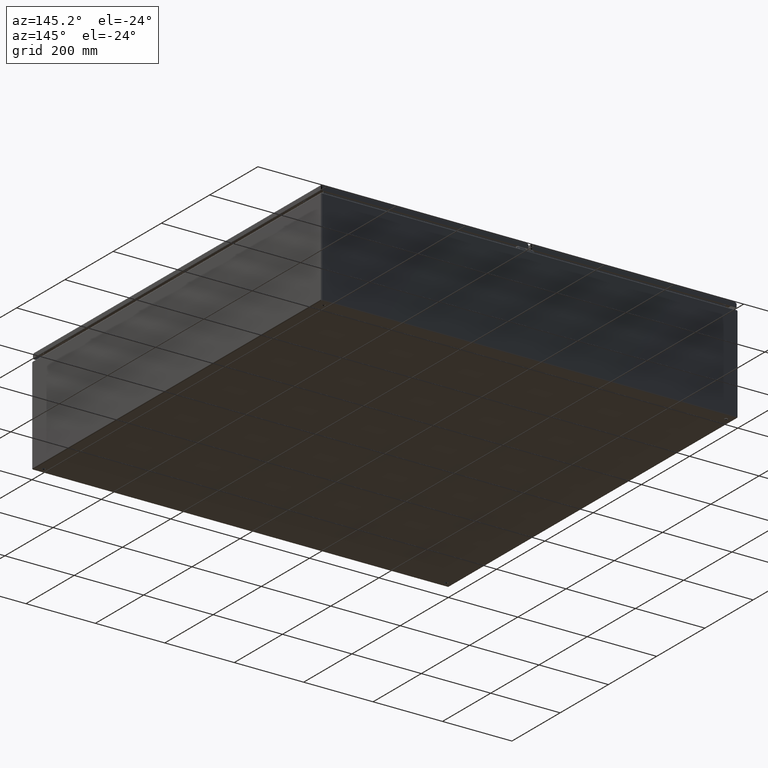
[diagram: clean part render]
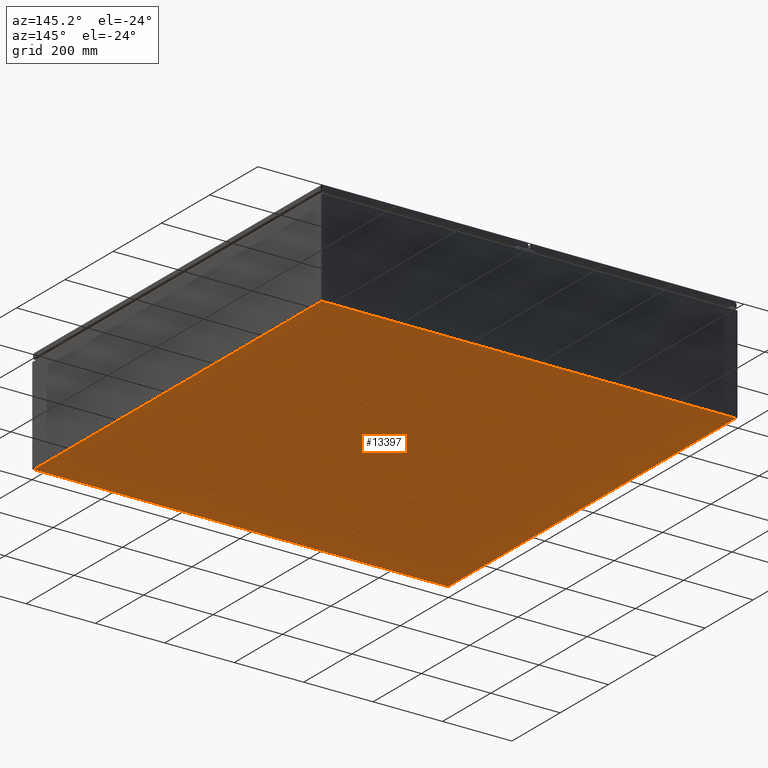
[diagram: same view with one face highlighted and labeled with its STEP entity id]
A machine part, auxiliary view. The second image highlights one B-rep face of the part: STEP entity #13397.
In plain terms, the highlighted planar face has unit normal (0, 0, 1).
Its self-contained STEP definition (entity closure, byte-faithful):
#5896 = AXIS2_PLACEMENT_3D ( 'NONE', #44908, #45060, #44760 ) ;
#6279 = AXIS2_PLACEMENT_3D ( 'NONE', #12270, #12272, #12042 ) ;
#6406 = AXIS2_PLACEMENT_3D ( 'NONE', #12240, #12211, #12248 ) ;
#6850 = AXIS2_PLACEMENT_3D ( 'NONE', #12011, #12067, #12049 ) ;
#6960 = AXIS2_PLACEMENT_3D ( 'NONE', #12264, #12084, #12036 ) ;
#7005 = AXIS2_PLACEMENT_3D ( 'NONE', #45023, #45071, #44801 ) ;
#7750 = AXIS2_PLACEMENT_3D ( 'NONE', #44615, #45044, #44610 ) ;
#7781 = AXIS2_PLACEMENT_3D ( 'NONE', #44832, #45058, #44940 ) ;
#9561 = DIRECTION ( 'NONE',  ( -1.224646799147353200E-016, -1.000000000000000000, 0.0000000000000000000 ) ) ;
#9653 = CARTESIAN_POINT ( 'NONE',  ( -597.0000000000003400, 598.5000000000002300, 1.301042606982605300E-015 ) ) ;
#12011 = CARTESIAN_POINT ( 'NONE',  ( -580.0000000000003400, 580.0000000000006800, 0.0000000000000000000 ) ) ;
#12031 = CARTESIAN_POINT ( 'NONE',  ( -598.5000000000002300, -597.0000000000002300, 1.301042606982605300E-015 ) ) ;
#12036 = DIRECTION ( 'NONE',  ( -1.000000000000000000, 0.0000000000000000000, 0.0000000000000000000 ) ) ;
#12042 = DIRECTION ( 'NONE',  ( 1.000000000000000000, 0.0000000000000000000, 0.0000000000000000000 ) ) ;
#12049 = DIRECTION ( 'NONE',  ( 1.000000000000000000, 0.0000000000000000000, 0.0000000000000000000 ) ) ;
#12067 = DIRECTION ( 'NONE',  ( -0.0000000000000000000, 0.0000000000000000000, -1.000000000000000000 ) ) ;
#12084 = DIRECTION ( 'NONE',  ( 0.0000000000000000000, 0.0000000000000000000, -1.000000000000000000 ) ) ;
#12187 = CARTESIAN_POINT ( 'NONE',  ( 598.5000000000001100, 597.0000000000002300, 1.301042606982605300E-015 ) ) ;
#12205 = DIRECTION ( 'NONE',  ( -1.000000000000000000, 6.123233995736766000E-017, 0.0000000000000000000 ) ) ;
#12211 = DIRECTION ( 'NONE',  ( 0.0000000000000000000, 0.0000000000000000000, -1.000000000000000000 ) ) ;
#12235 = CARTESIAN_POINT ( 'NONE',  ( 597.0000000000003400, -6583.500000000004500, 1.301042606982605300E-015 ) ) ;
#12240 = CARTESIAN_POINT ( 'NONE',  ( -580.0000000000005700, -580.0000000000004500, 0.0000000000000000000 ) ) ;
#12246 = DIRECTION ( 'NONE',  ( 0.0000000000000000000, 1.000000000000000000, 0.0000000000000000000 ) ) ;
#12248 = DIRECTION ( 'NONE',  ( -1.000000000000000000, 0.0000000000000000000, 0.0000000000000000000 ) ) ;
#12264 = CARTESIAN_POINT ( 'NONE',  ( 580.0000000000003400, 580.0000000000005700, 0.0000000000000000000 ) ) ;
#12270 = CARTESIAN_POINT ( 'NONE',  ( 580.0000000000003400, -580.0000000000005700, -0.0000000000000000000 ) ) ;
#12272 = DIRECTION ( 'NONE',  ( -0.0000000000000000000, 0.0000000000000000000, -1.000000000000000000 ) ) ;
#12293 = DIRECTION ( 'NONE',  ( 1.000000000000000000, -1.836970198721029900E-016, 0.0000000000000000000 ) ) ;
#13397 = ADVANCED_FACE ( 'NONE', ( #87613, #87609, #87618, #87622, #87614 ), #95344, .F. ) ;
#19099 = ORIENTED_EDGE ( 'NONE', *, *, #96363, .F. ) ;
#19160 = ORIENTED_EDGE ( 'NONE', *, *, #96266, .F. ) ;
#19248 = ORIENTED_EDGE ( 'NONE', *, *, #96283, .F. ) ;
#19281 = ORIENTED_EDGE ( 'NONE', *, *, #95795, .F. ) ;
#19331 = ORIENTED_EDGE ( 'NONE', *, *, #95926, .F. ) ;
#19489 = ORIENTED_EDGE ( 'NONE', *, *, #95911, .F. ) ;
#20223 = ORIENTED_EDGE ( 'NONE', *, *, #96279, .F. ) ;
#20847 = ORIENTED_EDGE ( 'NONE', *, *, #96289, .F. ) ;
#21084 = ORIENTED_EDGE ( 'NONE', *, *, #96275, .F. ) ;
#21151 = ORIENTED_EDGE ( 'NONE', *, *, #96255, .F. ) ;
#21416 = ORIENTED_EDGE ( 'NONE', *, *, #96354, .F. ) ;
#21472 = ORIENTED_EDGE ( 'NONE', *, *, #95940, .F. ) ;
#21797 = VERTEX_POINT ( 'NONE', #37786 ) ;
#22304 = VERTEX_POINT ( 'NONE', #53373 ) ;
#22427 = VERTEX_POINT ( 'NONE', #52986 ) ;
#22543 = VERTEX_POINT ( 'NONE', #53140 ) ;
#22596 = VERTEX_POINT ( 'NONE', #53096 ) ;
#22635 = VERTEX_POINT ( 'NONE', #53199 ) ;
#26665 = CARTESIAN_POINT ( 'NONE',  ( 597.0000000000003400, -596.9999999999417900, 1.301042606982605300E-015 ) ) ;
#27866 = CARTESIAN_POINT ( 'NONE',  ( 584.5000000000003400, -580.0000000000005700, 0.0000000000000000000 ) ) ;
#37786 = CARTESIAN_POINT ( 'NONE',  ( -584.5000000000003400, 580.0000000000006800, 0.0000000000000000000 ) ) ;
#44610 = DIRECTION ( 'NONE',  ( -1.000000000000000000, 0.0000000000000000000, 0.0000000000000000000 ) ) ;
#44615 = CARTESIAN_POINT ( 'NONE',  ( -580.0000000000005700, -580.0000000000004500, 0.0000000000000000000 ) ) ;
#44760 = DIRECTION ( 'NONE',  ( -1.000000000000000000, 0.0000000000000000000, 0.0000000000000000000 ) ) ;
#44801 = DIRECTION ( 'NONE',  ( 1.000000000000000000, 0.0000000000000000000, 0.0000000000000000000 ) ) ;
#44832 = CARTESIAN_POINT ( 'NONE',  ( -580.0000000000003400, 580.0000000000006800, 0.0000000000000000000 ) ) ;
#44908 = CARTESIAN_POINT ( 'NONE',  ( 580.0000000000003400, 580.0000000000005700, 0.0000000000000000000 ) ) ;
#44940 = DIRECTION ( 'NONE',  ( 1.000000000000000000, 0.0000000000000000000, 0.0000000000000000000 ) ) ;
#45023 = CARTESIAN_POINT ( 'NONE',  ( 580.0000000000003400, -580.0000000000005700, -0.0000000000000000000 ) ) ;
#45044 = DIRECTION ( 'NONE',  ( 0.0000000000000000000, 0.0000000000000000000, -1.000000000000000000 ) ) ;
#45058 = DIRECTION ( 'NONE',  ( -0.0000000000000000000, 0.0000000000000000000, -1.000000000000000000 ) ) ;
#45060 = DIRECTION ( 'NONE',  ( 0.0000000000000000000, 0.0000000000000000000, -1.000000000000000000 ) ) ;
#45071 = DIRECTION ( 'NONE',  ( -0.0000000000000000000, 0.0000000000000000000, -1.000000000000000000 ) ) ;
#52986 = CARTESIAN_POINT ( 'NONE',  ( 575.5000000000002300, 580.0000000000005700, 0.0000000000000000000 ) ) ;
#53096 = CARTESIAN_POINT ( 'NONE',  ( -597.0000000000002300, 596.9999999999821500, 1.301042606982605300E-015 ) ) ;
#53140 = CARTESIAN_POINT ( 'NONE',  ( -575.5000000000004500, -580.0000000000004500, 0.0000000000000000000 ) ) ;
#53199 = CARTESIAN_POINT ( 'NONE',  ( -597.0000000000031800, -597.0000000000002300, 1.301042606982605300E-015 ) ) ;
#53373 = CARTESIAN_POINT ( 'NONE',  ( -575.5000000000002300, 580.0000000000006800, 0.0000000000000000000 ) ) ;
#58267 = VERTEX_POINT ( 'NONE', #26665 ) ;
#58316 = VERTEX_POINT ( 'NONE', #27866 ) ;
#58628 = VERTEX_POINT ( 'NONE', #66233 ) ;
#58638 = VERTEX_POINT ( 'NONE', #65719 ) ;
#58661 = VERTEX_POINT ( 'NONE', #67408 ) ;
#58780 = VERTEX_POINT ( 'NONE', #66613 ) ;
#65719 = CARTESIAN_POINT ( 'NONE',  ( 584.5000000000003400, 580.0000000000005700, 0.0000000000000000000 ) ) ;
#66233 = CARTESIAN_POINT ( 'NONE',  ( 575.5000000000002300, -580.0000000000005700, 0.0000000000000000000 ) ) ;
#66613 = CARTESIAN_POINT ( 'NONE',  ( 597.0000000000026100, 597.0000000000003400, 1.301042606982605300E-015 ) ) ;
#67408 = CARTESIAN_POINT ( 'NONE',  ( -584.5000000000005700, -580.0000000000004500, 0.0000000000000000000 ) ) ;
#84043 = EDGE_LOOP ( 'NONE', ( #20847, #19489 ) ) ;
#84211 = EDGE_LOOP ( 'NONE', ( #20223, #21472 ) ) ;
#84261 = EDGE_LOOP ( 'NONE', ( #19248, #19281 ) ) ;
#84263 = EDGE_LOOP ( 'NONE', ( #19160, #19331 ) ) ;
#84373 = EDGE_LOOP ( 'NONE', ( #19099, #21084, #21151, #21416 ) ) ;
#87609 = FACE_BOUND ( 'NONE', #84211, .T. ) ;
#87613 = FACE_BOUND ( 'NONE', #84261, .T. ) ;
#87614 = FACE_OUTER_BOUND ( 'NONE', #84373, .T. ) ;
#87618 = FACE_BOUND ( 'NONE', #84263, .T. ) ;
#87622 = FACE_BOUND ( 'NONE', #84043, .T. ) ;
#92207 = CIRCLE ( 'NONE', #7005, 4.500000000000059500 ) ;
#92298 = CIRCLE ( 'NONE', #5896, 4.500000000000059500 ) ;
#92305 = CIRCLE ( 'NONE', #7781, 4.500000000000059500 ) ;
#92320 = CIRCLE ( 'NONE', #7750, 4.500000000000059500 ) ;
#92472 = LINE ( 'NONE', #9653, #92480 ) ;
#92480 = VECTOR ( 'NONE', #9561, 1000.000000000000000 ) ;
#92492 = CIRCLE ( 'NONE', #6850, 4.500000000000059500 ) ;
#92494 = LINE ( 'NONE', #12031, #92496 ) ;
#92496 = VECTOR ( 'NONE', #12293, 1000.000000000000000 ) ;
#92503 = CIRCLE ( 'NONE', #6406, 4.500000000000059500 ) ;
#92507 = CIRCLE ( 'NONE', #6279, 4.500000000000059500 ) ;
#92512 = CIRCLE ( 'NONE', #6960, 4.500000000000059500 ) ;
#92536 = VECTOR ( 'NONE', #12246, 1000.000000000000000 ) ;
#92547 = LINE ( 'NONE', #12187, #92549 ) ;
#92549 = VECTOR ( 'NONE', #12205, 1000.000000000000000 ) ;
#92553 = LINE ( 'NONE', #12235, #92536 ) ;
#94250 = AXIS2_PLACEMENT_3D ( 'NONE', #95237, #94828, #96038 ) ;
#94828 = DIRECTION ( 'NONE',  ( -0.0000000000000000000, 0.0000000000000000000, 1.000000000000000000 ) ) ;
#95237 = CARTESIAN_POINT ( 'NONE',  ( -598.5000000000001100, -598.5000000000001100, 0.0000000000000000000 ) ) ;
#95344 = PLANE ( 'NONE',  #94250 ) ;
#95795 = EDGE_CURVE ( 'NONE', #58316, #58628, #92207, .T. ) ;
#95911 = EDGE_CURVE ( 'NONE', #58638, #22427, #92298, .T. ) ;
#95926 = EDGE_CURVE ( 'NONE', #22304, #21797, #92305, .T. ) ;
#95940 = EDGE_CURVE ( 'NONE', #22543, #58661, #92320, .T. ) ;
#96038 = DIRECTION ( 'NONE',  ( 1.000000000000000000, 0.0000000000000000000, 0.0000000000000000000 ) ) ;
#96255 = EDGE_CURVE ( 'NONE', #22596, #22635, #92472, .T. ) ;
#96266 = EDGE_CURVE ( 'NONE', #21797, #22304, #92492, .T. ) ;
#96275 = EDGE_CURVE ( 'NONE', #22635, #58267, #92494, .T. ) ;
#96279 = EDGE_CURVE ( 'NONE', #58661, #22543, #92503, .T. ) ;
#96283 = EDGE_CURVE ( 'NONE', #58628, #58316, #92507, .T. ) ;
#96289 = EDGE_CURVE ( 'NONE', #22427, #58638, #92512, .T. ) ;
#96354 = EDGE_CURVE ( 'NONE', #58780, #22596, #92547, .T. ) ;
#96363 = EDGE_CURVE ( 'NONE', #58267, #58780, #92553, .T. ) ;